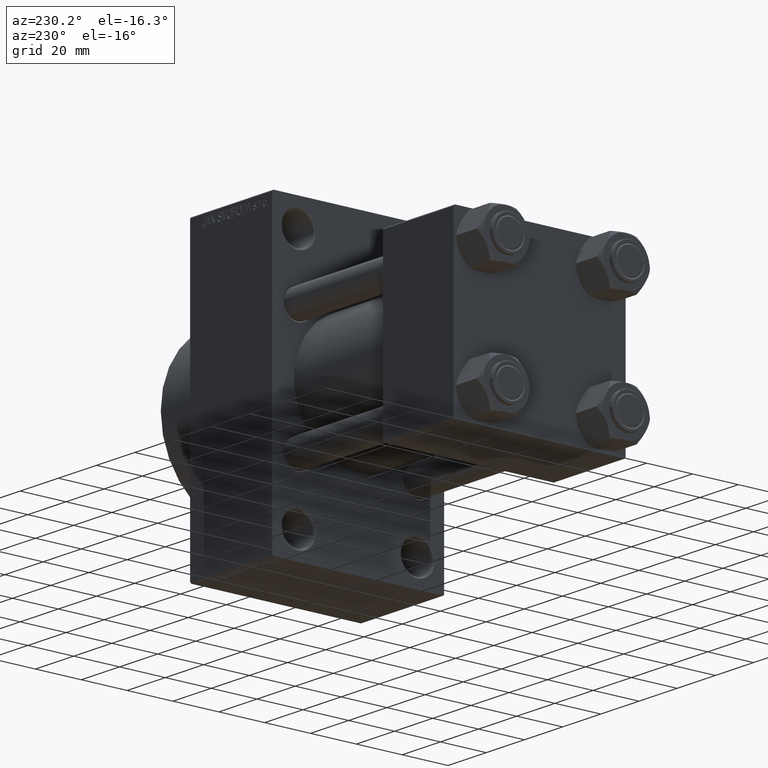
[diagram: clean part render]
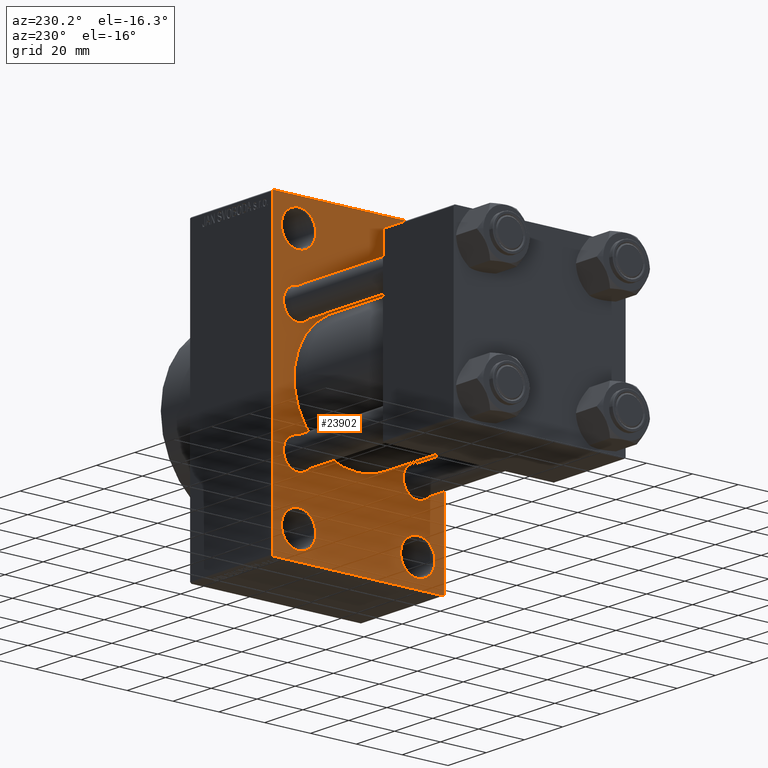
[diagram: same view with one face highlighted and labeled with its STEP entity id]
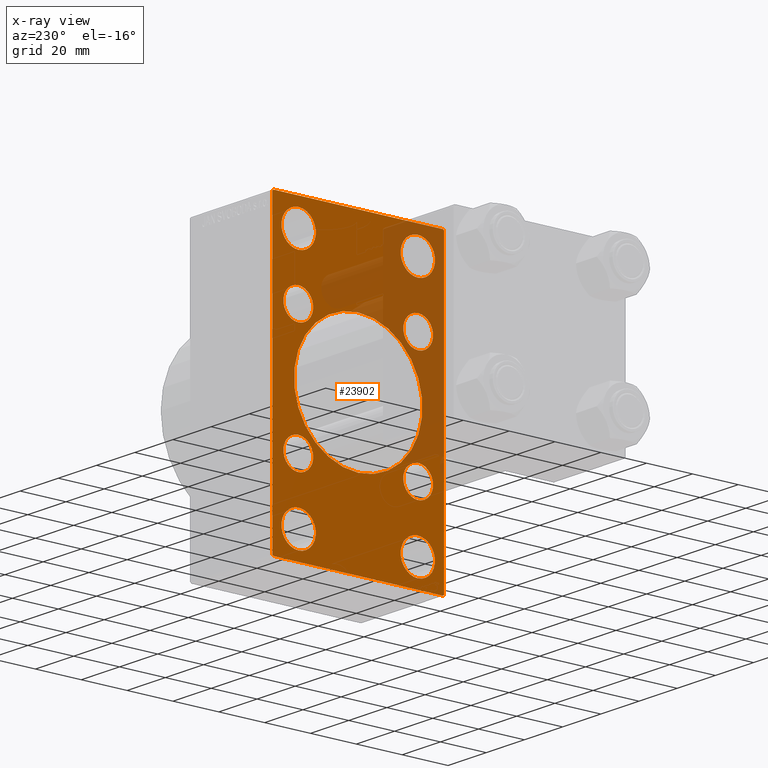
[diagram: x-ray of the same camera — body ghosted, the highlighted face saturated]
A machine part, auxiliary view. The second image highlights one B-rep face of the part: STEP entity #23902.
The next image is the same camera in x-ray: the body ghosted, the highlighted face saturated — about 28% of this face is hidden behind the body in this view.
In plain terms, the highlighted planar face has unit normal (-1, 0, 0).
Its self-contained STEP definition (entity closure, byte-faithful):
#50 = DIRECTION ( 'NONE',  ( 0.000000000000000000, 0.000000000000000000, 1.000000000000000000 ) ) ;
#51 = EDGE_CURVE ( 'NONE', #32787, #24959, #43815, .T. ) ;
#80 = ORIENTED_EDGE ( 'NONE', *, *, #28121, .T. ) ;
#150 = CIRCLE ( 'NONE', #23118, 7.499999999999978684 ) ;
#165 = CARTESIAN_POINT ( 'NONE',  ( 95.00000000000000000, -37.49999999999999289, 63.99999999999997158 ) ) ;
#402 = LINE ( 'NONE', #165, #19463 ) ;
#700 = AXIS2_PLACEMENT_3D ( 'NONE', #27271, #27033, #31355 ) ;
#755 = AXIS2_PLACEMENT_3D ( 'NONE', #42403, #1393, #37850 ) ;
#857 = VECTOR ( 'NONE', #31107, 1000.000000000000000 ) ;
#1393 = DIRECTION ( 'NONE',  ( 1.000000000000000000, -0.000000000000000000, 0.000000000000000000 ) ) ;
#1538 = VERTEX_POINT ( 'NONE', #22890 ) ;
#1579 = CIRCLE ( 'NONE', #36808, 7.499999999999978684 ) ;
#1732 = DIRECTION ( 'NONE',  ( 0.000000000000000000, 0.000000000000000000, 1.000000000000000000 ) ) ;
#1792 = CARTESIAN_POINT ( 'NONE',  ( 95.00000000000000000, -36.99999999999993605, -64.00000000000001421 ) ) ;
#1832 = ORIENTED_EDGE ( 'NONE', *, *, #15777, .T. ) ;
#1840 = CIRCLE ( 'NONE', #34758, 6.500000000000008882 ) ;
#1873 = ORIENTED_EDGE ( 'NONE', *, *, #3403, .T. ) ;
#1940 = ORIENTED_EDGE ( 'NONE', *, *, #33871, .T. ) ;
#1960 = CARTESIAN_POINT ( 'NONE',  ( 95.00000000000000000, -25.99999999999999645, 52.50000000000000000 ) ) ;
#1962 = CARTESIAN_POINT ( 'NONE',  ( 95.00000000000000000, 37.50000000000000000, 63.49999999999998579 ) ) ;
#2013 = FACE_BOUND ( 'NONE', #15368, .T. ) ;
#2087 = CARTESIAN_POINT ( 'NONE',  ( 95.00000000000000000, -2.602085213965210642E-15, 28.00000000000000000 ) ) ;
#2650 = VERTEX_POINT ( 'NONE', #27498 ) ;
#2699 = CARTESIAN_POINT ( 'NONE',  ( 95.00000000000000000, -2.602085213965210642E-15, 0.000000000000000000 ) ) ;
#2721 = DIRECTION ( 'NONE',  ( 0.000000000000000000, 0.000000000000000000, 1.000000000000000000 ) ) ;
#3249 = AXIS2_PLACEMENT_3D ( 'NONE', #35411, #17196, #13574 ) ;
#3403 = EDGE_CURVE ( 'NONE', #37137, #26567, #24155, .T. ) ;
#3697 = VERTEX_POINT ( 'NONE', #27226 ) ;
#3779 = CIRCLE ( 'NONE', #20637, 6.500000000000008882 ) ;
#3957 = VECTOR ( 'NONE', #5803, 999.9999999999998863 ) ;
#4173 = CARTESIAN_POINT ( 'NONE',  ( 95.00000000000000000, 26.00000000000000000, -59.99999999999997158 ) ) ;
#4303 = DIRECTION ( 'NONE',  ( 1.000000000000000000, -0.000000000000000000, 0.000000000000000000 ) ) ;
#4357 = EDGE_CURVE ( 'NONE', #46902, #13484, #26323, .T. ) ;
#4384 = EDGE_LOOP ( 'NONE', ( #20455, #14769 ) ) ;
#4537 = CARTESIAN_POINT ( 'NONE',  ( 95.00000000000000000, 26.00000000000000000, 52.49999999999999289 ) ) ;
#4649 = VECTOR ( 'NONE', #25657, 1000.000000000000000 ) ;
#4677 = EDGE_CURVE ( 'NONE', #8732, #14521, #1840, .T. ) ;
#4763 = EDGE_LOOP ( 'NONE', ( #28989, #9282 ) ) ;
#5183 = EDGE_CURVE ( 'NONE', #37137, #44764, #402, .T. ) ;
#5313 = EDGE_CURVE ( 'NONE', #5816, #26567, #46819, .T. ) ;
#5689 = CARTESIAN_POINT ( 'NONE',  ( 95.00000000000000000, -26.14999999999999147, -19.65000000000000213 ) ) ;
#5803 = DIRECTION ( 'NONE',  ( 0.000000000000000000, -0.7071067811865574537, 0.7071067811865376918 ) ) ;
#5816 = VERTEX_POINT ( 'NONE', #10535 ) ;
#5836 = DIRECTION ( 'NONE',  ( -1.000000000000000000, 0.000000000000000000, -0.000000000000000000 ) ) ;
#6056 = FACE_BOUND ( 'NONE', #31044, .T. ) ;
#6317 = DIRECTION ( 'NONE',  ( 0.000000000000000000, -1.000000000000000000, -1.850371707708594563E-16 ) ) ;
#6701 = ORIENTED_EDGE ( 'NONE', *, *, #51, .T. ) ;
#7505 = EDGE_LOOP ( 'NONE', ( #12081, #39208 ) ) ;
#7837 = CIRCLE ( 'NONE', #13982, 7.499999999999978684 ) ;
#7932 = CARTESIAN_POINT ( 'NONE',  ( 95.00000000000000000, -25.99999999999999645, -52.49999999999999289 ) ) ;
#8355 = DIRECTION ( 'NONE',  ( 1.000000000000000000, -0.000000000000000000, 0.000000000000000000 ) ) ;
#8601 = VERTEX_POINT ( 'NONE', #21417 ) ;
#8732 = VERTEX_POINT ( 'NONE', #12496 ) ;
#8919 = LINE ( 'NONE', #38677, #3957 ) ;
#9166 = DIRECTION ( 'NONE',  ( 1.000000000000000000, 0.000000000000000000, 0.000000000000000000 ) ) ;
#9282 = ORIENTED_EDGE ( 'NONE', *, *, #43408, .T. ) ;
#9428 = FACE_BOUND ( 'NONE', #46474, .T. ) ;
#9539 = CARTESIAN_POINT ( 'NONE',  ( 95.00000000000000000, 50.49999999999948841, -50.50000000000088107 ) ) ;
#9554 = CARTESIAN_POINT ( 'NONE',  ( 95.00000000000000000, 26.14999999999999858, -32.65000000000001279 ) ) ;
#10141 = DIRECTION ( 'NONE',  ( 1.000000000000000000, -0.000000000000000000, 0.000000000000000000 ) ) ;
#10254 = CIRCLE ( 'NONE', #37054, 6.500000000000008882 ) ;
#10472 = CARTESIAN_POINT ( 'NONE',  ( 95.00000000000000000, 26.00000000000000000, 45.00000000000001421 ) ) ;
#10535 = CARTESIAN_POINT ( 'NONE',  ( 95.00000000000000000, 36.99999999999997158, 63.99999999999998579 ) ) ;
#10860 = CARTESIAN_POINT ( 'NONE',  ( 95.00000000000000000, 26.14999999999999858, 26.15000000000000213 ) ) ;
#11290 = DIRECTION ( 'NONE',  ( 1.000000000000000000, -0.000000000000000000, 0.000000000000000000 ) ) ;
#12081 = ORIENTED_EDGE ( 'NONE', *, *, #42782, .T. ) ;
#12222 = CARTESIAN_POINT ( 'NONE',  ( 95.00000000000000000, 8.269258236473776482E-16, -28.00000000000000000 ) ) ;
#12461 = DIRECTION ( 'NONE',  ( 0.000000000000000000, 0.000000000000000000, 1.000000000000000000 ) ) ;
#12496 = CARTESIAN_POINT ( 'NONE',  ( 95.00000000000000000, -26.14999999999999147, -32.65000000000001990 ) ) ;
#12954 = ORIENTED_EDGE ( 'NONE', *, *, #13939, .T. ) ;
#13484 = VERTEX_POINT ( 'NONE', #2087 ) ;
#13522 = DIRECTION ( 'NONE',  ( 1.000000000000000000, -0.000000000000000000, 0.000000000000000000 ) ) ;
#13574 = DIRECTION ( 'NONE',  ( 0.000000000000000000, 0.000000000000000000, 1.000000000000000000 ) ) ;
#13725 = FACE_BOUND ( 'NONE', #4384, .T. ) ;
#13939 = EDGE_CURVE ( 'NONE', #13484, #46902, #16750, .T. ) ;
#13962 = DIRECTION ( 'NONE',  ( 0.000000000000000000, -1.000000000000000000, -1.850371707708594563E-16 ) ) ;
#13982 = AXIS2_PLACEMENT_3D ( 'NONE', #46816, #17815, #43228 ) ;
#14447 = ORIENTED_EDGE ( 'NONE', *, *, #5183, .F. ) ;
#14521 = VERTEX_POINT ( 'NONE', #5689 ) ;
#14769 = ORIENTED_EDGE ( 'NONE', *, *, #17322, .T. ) ;
#15172 = CARTESIAN_POINT ( 'NONE',  ( 95.00000000000000000, -37.49999999999999289, -63.49999999999997158 ) ) ;
#15368 = EDGE_LOOP ( 'NONE', ( #12954, #38079 ) ) ;
#15777 = EDGE_CURVE ( 'NONE', #46891, #18815, #25499, .T. ) ;
#15788 = CIRCLE ( 'NONE', #24231, 7.499999999999978684 ) ;
#16047 = ORIENTED_EDGE ( 'NONE', *, *, #18938, .T. ) ;
#16064 = CARTESIAN_POINT ( 'NONE',  ( 95.00000000000000000, 26.14999999999999858, -26.15000000000000213 ) ) ;
#16216 = CIRCLE ( 'NONE', #28452, 6.500000000000008882 ) ;
#16480 = ORIENTED_EDGE ( 'NONE', *, *, #27506, .T. ) ;
#16481 = CARTESIAN_POINT ( 'NONE',  ( 95.00000000000000000, 37.50000000000000000, 63.99999999999998579 ) ) ;
#16599 = DIRECTION ( 'NONE',  ( 1.000000000000000000, 0.000000000000000000, 0.000000000000000000 ) ) ;
#16621 = DIRECTION ( 'NONE',  ( 0.000000000000000000, 0.000000000000000000, -1.000000000000000000 ) ) ;
#16750 = CIRCLE ( 'NONE', #25259, 28.00000000000000000 ) ;
#16869 = FACE_BOUND ( 'NONE', #4763, .T. ) ;
#17010 = VECTOR ( 'NONE', #27508, 1000.000000000000000 ) ;
#17196 = DIRECTION ( 'NONE',  ( 1.000000000000000000, -0.000000000000000000, 0.000000000000000000 ) ) ;
#17278 = EDGE_LOOP ( 'NONE', ( #6701, #1940 ) ) ;
#17322 = EDGE_CURVE ( 'NONE', #37494, #35668, #21434, .T. ) ;
#17438 = ORIENTED_EDGE ( 'NONE', *, *, #34244, .T. ) ;
#17686 = ORIENTED_EDGE ( 'NONE', *, *, #42728, .T. ) ;
#17776 = LINE ( 'NONE', #40069, #4649 ) ;
#17815 = DIRECTION ( 'NONE',  ( 1.000000000000000000, -0.000000000000000000, 0.000000000000000000 ) ) ;
#18488 = DIRECTION ( 'NONE',  ( 0.000000000000000000, 0.000000000000000000, 1.000000000000000000 ) ) ;
#18512 = AXIS2_PLACEMENT_3D ( 'NONE', #4537, #4303, #33333 ) ;
#18815 = VERTEX_POINT ( 'NONE', #1792 ) ;
#18938 = EDGE_CURVE ( 'NONE', #8601, #27208, #1579, .T. ) ;
#19295 = CARTESIAN_POINT ( 'NONE',  ( 95.00000000000000000, -25.99999999999999645, 59.99999999999997868 ) ) ;
#19362 = EDGE_CURVE ( 'NONE', #5816, #36765, #17776, .T. ) ;
#19463 = VECTOR ( 'NONE', #41585, 1000.000000000000000 ) ;
#19592 = EDGE_CURVE ( 'NONE', #36765, #24769, #34934, .T. ) ;
#19684 = CARTESIAN_POINT ( 'NONE',  ( 95.00000000000000000, 36.99999999999999289, -64.00000000000000000 ) ) ;
#20132 = CIRCLE ( 'NONE', #46930, 7.499999999999978684 ) ;
#20251 = FACE_BOUND ( 'NONE', #17278, .T. ) ;
#20455 = ORIENTED_EDGE ( 'NONE', *, *, #32903, .T. ) ;
#20637 = AXIS2_PLACEMENT_3D ( 'NONE', #10860, #26195, #33173 ) ;
#20898 = EDGE_CURVE ( 'NONE', #18815, #44764, #8919, .T. ) ;
#21417 = CARTESIAN_POINT ( 'NONE',  ( 95.00000000000000000, 26.00000000000000000, -45.00000000000001421 ) ) ;
#21434 = CIRCLE ( 'NONE', #755, 7.499999999999978684 ) ;
#22192 = CIRCLE ( 'NONE', #35958, 6.500000000000008882 ) ;
#22361 = CARTESIAN_POINT ( 'NONE',  ( 95.00000000000000000, 26.14999999999999858, 32.65000000000001990 ) ) ;
#22374 = ORIENTED_EDGE ( 'NONE', *, *, #34702, .T. ) ;
#22537 = CARTESIAN_POINT ( 'NONE',  ( 95.00000000000000000, -26.14999999999999147, 26.15000000000000924 ) ) ;
#22890 = CARTESIAN_POINT ( 'NONE',  ( 95.00000000000000000, -25.99999999999999645, -45.00000000000001421 ) ) ;
#23118 = AXIS2_PLACEMENT_3D ( 'NONE', #45445, #23608, #34400 ) ;
#23363 = EDGE_CURVE ( 'NONE', #42978, #3697, #23926, .T. ) ;
#23608 = DIRECTION ( 'NONE',  ( 1.000000000000000000, -0.000000000000000000, 0.000000000000000000 ) ) ;
#23682 = EDGE_CURVE ( 'NONE', #3697, #42978, #38481, .T. ) ;
#23902 = ADVANCED_FACE ( 'NONE', ( #13725, #16869, #24519, #9428, #45663, #20251, #6056, #27901, #2013, #28355 ), #24065, .T. ) ;
#23926 = CIRCLE ( 'NONE', #33144, 6.500000000000008882 ) ;
#24065 = PLANE ( 'NONE',  #26241 ) ;
#24155 = LINE ( 'NONE', #46454, #17010 ) ;
#24231 = AXIS2_PLACEMENT_3D ( 'NONE', #1960, #27847, #1732 ) ;
#24307 = ORIENTED_EDGE ( 'NONE', *, *, #19362, .T. ) ;
#24519 = FACE_BOUND ( 'NONE', #46593, .T. ) ;
#24535 = DIRECTION ( 'NONE',  ( 0.000000000000000000, 0.000000000000000000, 1.000000000000000000 ) ) ;
#24769 = VERTEX_POINT ( 'NONE', #46770 ) ;
#24881 = LINE ( 'NONE', #9539, #30124 ) ;
#24959 = VERTEX_POINT ( 'NONE', #39052 ) ;
#25029 = CARTESIAN_POINT ( 'NONE',  ( 95.00000000000000000, -26.14999999999999147, -26.15000000000000924 ) ) ;
#25259 = AXIS2_PLACEMENT_3D ( 'NONE', #35050, #16599, #27610 ) ;
#25499 = LINE ( 'NONE', #40142, #28263 ) ;
#25589 = VERTEX_POINT ( 'NONE', #40068 ) ;
#25657 = DIRECTION ( 'NONE',  ( 0.000000000000000000, 0.7071067811865672237, -0.7071067811865279218 ) ) ;
#26195 = DIRECTION ( 'NONE',  ( 1.000000000000000000, -0.000000000000000000, 0.000000000000000000 ) ) ;
#26241 = AXIS2_PLACEMENT_3D ( 'NONE', #38709, #5836, #46131 ) ;
#26323 = CIRCLE ( 'NONE', #45485, 28.00000000000000000 ) ;
#26495 = EDGE_CURVE ( 'NONE', #2650, #46061, #10254, .T. ) ;
#26567 = VERTEX_POINT ( 'NONE', #31524 ) ;
#27033 = DIRECTION ( 'NONE',  ( 1.000000000000000000, -0.000000000000000000, 0.000000000000000000 ) ) ;
#27194 = EDGE_LOOP ( 'NONE', ( #1832, #35717, #14447, #1873, #36321, #24307, #43480, #80 ) ) ;
#27208 = VERTEX_POINT ( 'NONE', #4173 ) ;
#27226 = CARTESIAN_POINT ( 'NONE',  ( 95.00000000000000000, 26.14999999999999858, -19.64999999999999503 ) ) ;
#27271 = CARTESIAN_POINT ( 'NONE',  ( 95.00000000000000000, 26.00000000000000000, 52.49999999999999289 ) ) ;
#27498 = CARTESIAN_POINT ( 'NONE',  ( 95.00000000000000000, -26.14999999999999147, 19.65000000000000213 ) ) ;
#27506 = EDGE_CURVE ( 'NONE', #27208, #8601, #7837, .T. ) ;
#27508 = DIRECTION ( 'NONE',  ( -0.000000000000000000, 0.7071067811865524577, 0.7071067811865426878 ) ) ;
#27577 = EDGE_CURVE ( 'NONE', #1538, #44904, #20132, .T. ) ;
#27610 = DIRECTION ( 'NONE',  ( 0.000000000000000000, 0.000000000000000000, -1.000000000000000000 ) ) ;
#27847 = DIRECTION ( 'NONE',  ( 1.000000000000000000, -0.000000000000000000, 0.000000000000000000 ) ) ;
#27901 = FACE_BOUND ( 'NONE', #36037, .T. ) ;
#28121 = EDGE_CURVE ( 'NONE', #24769, #46891, #24881, .T. ) ;
#28263 = VECTOR ( 'NONE', #6317, 1000.000000000000000 ) ;
#28343 = CARTESIAN_POINT ( 'NONE',  ( 95.00000000000000000, 37.50000000000000000, 63.99999999999998579 ) ) ;
#28355 = FACE_OUTER_BOUND ( 'NONE', #27194, .T. ) ;
#28452 = AXIS2_PLACEMENT_3D ( 'NONE', #22537, #8355, #41720 ) ;
#28577 = CARTESIAN_POINT ( 'NONE',  ( 95.00000000000000000, -25.99999999999999645, -59.99999999999997158 ) ) ;
#28610 = DIRECTION ( 'NONE',  ( 1.000000000000000000, -0.000000000000000000, 0.000000000000000000 ) ) ;
#28989 = ORIENTED_EDGE ( 'NONE', *, *, #27577, .T. ) ;
#29337 = ORIENTED_EDGE ( 'NONE', *, *, #4677, .T. ) ;
#29734 = DIRECTION ( 'NONE',  ( 1.000000000000000000, -0.000000000000000000, 0.000000000000000000 ) ) ;
#30052 = AXIS2_PLACEMENT_3D ( 'NONE', #32876, #29734, #18488 ) ;
#30124 = VECTOR ( 'NONE', #46007, 1000.000000000000000 ) ;
#31044 = EDGE_LOOP ( 'NONE', ( #34913, #31971 ) ) ;
#31107 = DIRECTION ( 'NONE',  ( 0.000000000000000000, -5.421010862427522170E-17, -1.000000000000000000 ) ) ;
#31355 = DIRECTION ( 'NONE',  ( 0.000000000000000000, 0.000000000000000000, 1.000000000000000000 ) ) ;
#31363 = VERTEX_POINT ( 'NONE', #10472 ) ;
#31515 = CIRCLE ( 'NONE', #18512, 7.499999999999978684 ) ;
#31524 = CARTESIAN_POINT ( 'NONE',  ( 95.00000000000000000, -36.99999999999995737, 63.99999999999997158 ) ) ;
#31674 = CARTESIAN_POINT ( 'NONE',  ( 95.00000000000000000, -26.14999999999999147, -26.15000000000000924 ) ) ;
#31971 = ORIENTED_EDGE ( 'NONE', *, *, #23363, .T. ) ;
#32238 = DIRECTION ( 'NONE',  ( 0.000000000000000000, 0.000000000000000000, 1.000000000000000000 ) ) ;
#32787 = VERTEX_POINT ( 'NONE', #22361 ) ;
#32876 = CARTESIAN_POINT ( 'NONE',  ( 95.00000000000000000, 26.14999999999999858, 26.15000000000000213 ) ) ;
#32903 = EDGE_CURVE ( 'NONE', #35668, #37494, #15788, .T. ) ;
#33144 = AXIS2_PLACEMENT_3D ( 'NONE', #16064, #45325, #12461 ) ;
#33173 = DIRECTION ( 'NONE',  ( 0.000000000000000000, 0.000000000000000000, 1.000000000000000000 ) ) ;
#33333 = DIRECTION ( 'NONE',  ( 0.000000000000000000, 0.000000000000000000, 1.000000000000000000 ) ) ;
#33871 = EDGE_CURVE ( 'NONE', #24959, #32787, #3779, .T. ) ;
#34244 = EDGE_CURVE ( 'NONE', #31363, #25589, #40549, .T. ) ;
#34400 = DIRECTION ( 'NONE',  ( 0.000000000000000000, 0.000000000000000000, 1.000000000000000000 ) ) ;
#34702 = EDGE_CURVE ( 'NONE', #14521, #8732, #22192, .T. ) ;
#34758 = AXIS2_PLACEMENT_3D ( 'NONE', #31674, #41756, #39089 ) ;
#34913 = ORIENTED_EDGE ( 'NONE', *, *, #23682, .T. ) ;
#34934 = LINE ( 'NONE', #16481, #857 ) ;
#35050 = CARTESIAN_POINT ( 'NONE',  ( 95.00000000000000000, -2.602085213965210642E-15, 0.000000000000000000 ) ) ;
#35411 = CARTESIAN_POINT ( 'NONE',  ( 95.00000000000000000, 26.14999999999999858, -26.15000000000000213 ) ) ;
#35668 = VERTEX_POINT ( 'NONE', #19295 ) ;
#35717 = ORIENTED_EDGE ( 'NONE', *, *, #20898, .T. ) ;
#35958 = AXIS2_PLACEMENT_3D ( 'NONE', #25029, #13522, #32238 ) ;
#36037 = EDGE_LOOP ( 'NONE', ( #22374, #29337 ) ) ;
#36171 = CARTESIAN_POINT ( 'NONE',  ( 95.00000000000000000, -26.14999999999999147, 32.65000000000001990 ) ) ;
#36321 = ORIENTED_EDGE ( 'NONE', *, *, #5313, .F. ) ;
#36765 = VERTEX_POINT ( 'NONE', #1962 ) ;
#36808 = AXIS2_PLACEMENT_3D ( 'NONE', #46836, #28610, #2721 ) ;
#37054 = AXIS2_PLACEMENT_3D ( 'NONE', #46605, #10141, #24535 ) ;
#37137 = VERTEX_POINT ( 'NONE', #40957 ) ;
#37494 = VERTEX_POINT ( 'NONE', #41839 ) ;
#37850 = DIRECTION ( 'NONE',  ( 0.000000000000000000, 0.000000000000000000, 1.000000000000000000 ) ) ;
#38079 = ORIENTED_EDGE ( 'NONE', *, *, #4357, .T. ) ;
#38481 = CIRCLE ( 'NONE', #3249, 6.500000000000008882 ) ;
#38677 = CARTESIAN_POINT ( 'NONE',  ( 95.00000000000000000, -50.49999999999945999, -50.50000000000086686 ) ) ;
#38709 = CARTESIAN_POINT ( 'NONE',  ( 95.00000000000000000, 0.000000000000000000, 0.000000000000000000 ) ) ;
#39052 = CARTESIAN_POINT ( 'NONE',  ( 95.00000000000000000, 26.14999999999999858, 19.64999999999999147 ) ) ;
#39089 = DIRECTION ( 'NONE',  ( 0.000000000000000000, 0.000000000000000000, 1.000000000000000000 ) ) ;
#39208 = ORIENTED_EDGE ( 'NONE', *, *, #26495, .T. ) ;
#40068 = CARTESIAN_POINT ( 'NONE',  ( 95.00000000000000000, 26.00000000000000000, 59.99999999999997158 ) ) ;
#40069 = CARTESIAN_POINT ( 'NONE',  ( 95.00000000000000000, 50.49999999999894840, 50.50000000000176215 ) ) ;
#40142 = CARTESIAN_POINT ( 'NONE',  ( 95.00000000000000000, 37.49999999999999289, -64.00000000000000000 ) ) ;
#40549 = CIRCLE ( 'NONE', #700, 7.499999999999978684 ) ;
#40957 = CARTESIAN_POINT ( 'NONE',  ( 95.00000000000000000, -37.49999999999999289, 63.49999999999994316 ) ) ;
#41585 = DIRECTION ( 'NONE',  ( 0.000000000000000000, 0.000000000000000000, -1.000000000000000000 ) ) ;
#41720 = DIRECTION ( 'NONE',  ( 0.000000000000000000, 0.000000000000000000, 1.000000000000000000 ) ) ;
#41756 = DIRECTION ( 'NONE',  ( 1.000000000000000000, -0.000000000000000000, 0.000000000000000000 ) ) ;
#41839 = CARTESIAN_POINT ( 'NONE',  ( 95.00000000000000000, -25.99999999999999645, 45.00000000000002132 ) ) ;
#42403 = CARTESIAN_POINT ( 'NONE',  ( 95.00000000000000000, -25.99999999999999645, 52.50000000000000000 ) ) ;
#42728 = EDGE_CURVE ( 'NONE', #25589, #31363, #31515, .T. ) ;
#42782 = EDGE_CURVE ( 'NONE', #46061, #2650, #16216, .T. ) ;
#42978 = VERTEX_POINT ( 'NONE', #9554 ) ;
#43228 = DIRECTION ( 'NONE',  ( 0.000000000000000000, 0.000000000000000000, 1.000000000000000000 ) ) ;
#43408 = EDGE_CURVE ( 'NONE', #44904, #1538, #150, .T. ) ;
#43480 = ORIENTED_EDGE ( 'NONE', *, *, #19592, .T. ) ;
#43815 = CIRCLE ( 'NONE', #30052, 6.500000000000008882 ) ;
#44764 = VERTEX_POINT ( 'NONE', #15172 ) ;
#44904 = VERTEX_POINT ( 'NONE', #28577 ) ;
#45325 = DIRECTION ( 'NONE',  ( 1.000000000000000000, -0.000000000000000000, 0.000000000000000000 ) ) ;
#45445 = CARTESIAN_POINT ( 'NONE',  ( 95.00000000000000000, -25.99999999999999645, -52.49999999999999289 ) ) ;
#45485 = AXIS2_PLACEMENT_3D ( 'NONE', #2699, #9166, #16621 ) ;
#45663 = FACE_BOUND ( 'NONE', #7505, .T. ) ;
#46007 = DIRECTION ( 'NONE',  ( -0.000000000000000000, -0.7071067811865573427, -0.7071067811865378028 ) ) ;
#46061 = VERTEX_POINT ( 'NONE', #36171 ) ;
#46131 = DIRECTION ( 'NONE',  ( -0.000000000000000000, 0.000000000000000000, 1.000000000000000000 ) ) ;
#46454 = CARTESIAN_POINT ( 'NONE',  ( 95.00000000000000000, -50.49999999999970868, 50.50000000000040501 ) ) ;
#46474 = EDGE_LOOP ( 'NONE', ( #17686, #17438 ) ) ;
#46593 = EDGE_LOOP ( 'NONE', ( #16047, #16480 ) ) ;
#46605 = CARTESIAN_POINT ( 'NONE',  ( 95.00000000000000000, -26.14999999999999147, 26.15000000000000924 ) ) ;
#46770 = CARTESIAN_POINT ( 'NONE',  ( 95.00000000000000000, 37.49999999999999289, -63.50000000000001421 ) ) ;
#46816 = CARTESIAN_POINT ( 'NONE',  ( 95.00000000000000000, 26.00000000000000000, -52.49999999999999289 ) ) ;
#46819 = LINE ( 'NONE', #28343, #47246 ) ;
#46836 = CARTESIAN_POINT ( 'NONE',  ( 95.00000000000000000, 26.00000000000000000, -52.49999999999999289 ) ) ;
#46891 = VERTEX_POINT ( 'NONE', #19684 ) ;
#46902 = VERTEX_POINT ( 'NONE', #12222 ) ;
#46930 = AXIS2_PLACEMENT_3D ( 'NONE', #7932, #11290, #50 ) ;
#47246 = VECTOR ( 'NONE', #13962, 1000.000000000000000 ) ;